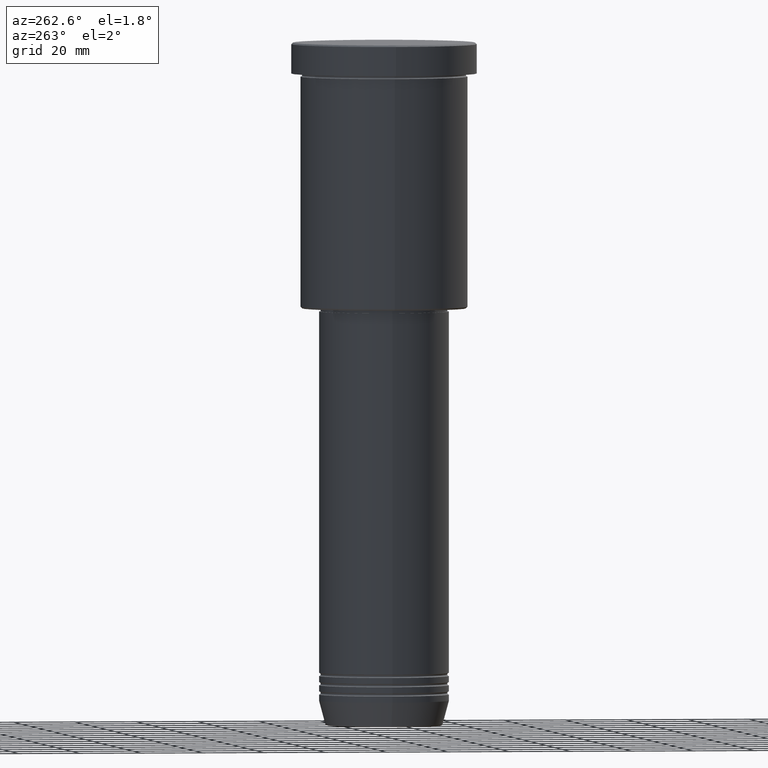
[diagram: clean part render]
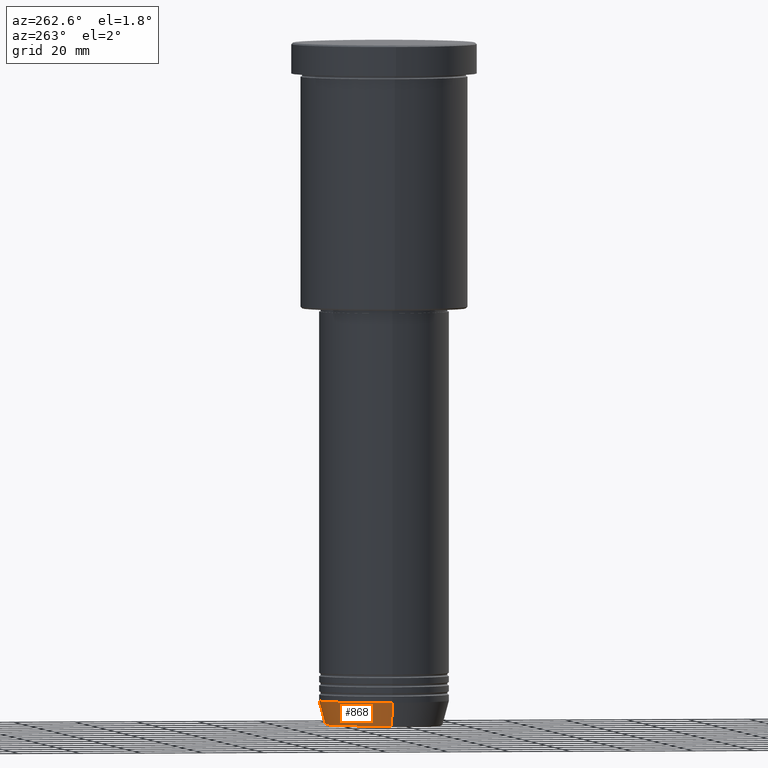
[diagram: same view with one face highlighted and labeled with its STEP entity id]
A machine part, auxiliary view. The second image highlights one B-rep face of the part: STEP entity #868.
In plain terms, the highlighted conical surface has half-angle 15 deg.
Its self-contained STEP definition (entity closure, byte-faithful):
#9 = DIRECTION ( 'NONE',  ( -0.000000000000000000, -0.000000000000000000, 1.000000000000000000 ) ) ;
#20 = CARTESIAN_POINT ( 'NONE',  ( -21.00000000000000000, 2.571758278209441661E-15, -213.0000000000000000 ) ) ;
#26 = DIRECTION ( 'NONE',  ( 1.000000000000000000, 0.000000000000000000, 0.000000000000000000 ) ) ;
#40 = EDGE_CURVE ( 'NONE', #87, #799, #314, .T. ) ;
#62 = CARTESIAN_POINT ( 'NONE',  ( 21.00000000000000000, 0.000000000000000000, -213.0000000000000000 ) ) ;
#87 = VERTEX_POINT ( 'NONE', #549 ) ;
#95 = CONICAL_SURFACE ( 'NONE', #475, 21.00000000000000000, 0.2617993877991500740 ) ;
#112 = ORIENTED_EDGE ( 'NONE', *, *, #40, .T. ) ;
#141 = DIRECTION ( 'NONE',  ( 0.2588190451025213501, 0.000000000000000000, 0.9659258262890680902 ) ) ;
#194 = DIRECTION ( 'NONE',  ( -0.000000000000000000, -0.000000000000000000, 1.000000000000000000 ) ) ;
#198 = VECTOR ( 'NONE', #579, 1000.000000000000000 ) ;
#234 = VERTEX_POINT ( 'NONE', #62 ) ;
#274 = CARTESIAN_POINT ( 'NONE',  ( 0.000000000000000000, 0.000000000000000000, -213.0000000000000000 ) ) ;
#313 = CARTESIAN_POINT ( 'NONE',  ( 21.00000000000000000, 0.000000000000000000, -213.0000000000000000 ) ) ;
#314 = LINE ( 'NONE', #944, #198 ) ;
#345 = EDGE_CURVE ( 'NONE', #234, #799, #606, .T. ) ;
#383 = CIRCLE ( 'NONE', #689, 18.95570587970606624 ) ;
#444 = EDGE_LOOP ( 'NONE', ( #1119, #112, #542, #745 ) ) ;
#475 = AXIS2_PLACEMENT_3D ( 'NONE', #754, #572, #26 ) ;
#542 = ORIENTED_EDGE ( 'NONE', *, *, #345, .F. ) ;
#549 = CARTESIAN_POINT ( 'NONE',  ( -18.95570587970606624, 2.446581365662755730E-15, -220.6294095225512422 ) ) ;
#572 = DIRECTION ( 'NONE',  ( -0.000000000000000000, -0.000000000000000000, 1.000000000000000000 ) ) ;
#579 = DIRECTION ( 'NONE',  ( -0.2588190451025213501, 3.169619151431772337E-17, 0.9659258262890680902 ) ) ;
#606 = CIRCLE ( 'NONE', #837, 21.00000000000000000 ) ;
#633 = VERTEX_POINT ( 'NONE', #884 ) ;
#662 = VECTOR ( 'NONE', #141, 1000.000000000000000 ) ;
#676 = CARTESIAN_POINT ( 'NONE',  ( 0.000000000000000000, 0.000000000000000000, -220.6294095225512422 ) ) ;
#689 = AXIS2_PLACEMENT_3D ( 'NONE', #676, #194, #1116 ) ;
#709 = EDGE_CURVE ( 'NONE', #633, #234, #1132, .T. ) ;
#745 = ORIENTED_EDGE ( 'NONE', *, *, #709, .F. ) ;
#754 = CARTESIAN_POINT ( 'NONE',  ( 0.000000000000000000, 0.000000000000000000, -213.0000000000000000 ) ) ;
#799 = VERTEX_POINT ( 'NONE', #20 ) ;
#837 = AXIS2_PLACEMENT_3D ( 'NONE', #274, #9, #996 ) ;
#868 = ADVANCED_FACE ( 'NONE', ( #1031 ), #95, .T. ) ;
#884 = CARTESIAN_POINT ( 'NONE',  ( 18.95570587970606624, 0.000000000000000000, -220.6294095225512422 ) ) ;
#944 = CARTESIAN_POINT ( 'NONE',  ( -21.00000000000000000, 2.571758278209441661E-15, -213.0000000000000000 ) ) ;
#996 = DIRECTION ( 'NONE',  ( 1.000000000000000000, 0.000000000000000000, 0.000000000000000000 ) ) ;
#1031 = FACE_OUTER_BOUND ( 'NONE', #444, .T. ) ;
#1116 = DIRECTION ( 'NONE',  ( 1.000000000000000000, 0.000000000000000000, 0.000000000000000000 ) ) ;
#1119 = ORIENTED_EDGE ( 'NONE', *, *, #1181, .T. ) ;
#1132 = LINE ( 'NONE', #313, #662 ) ;
#1181 = EDGE_CURVE ( 'NONE', #633, #87, #383, .T. ) ;